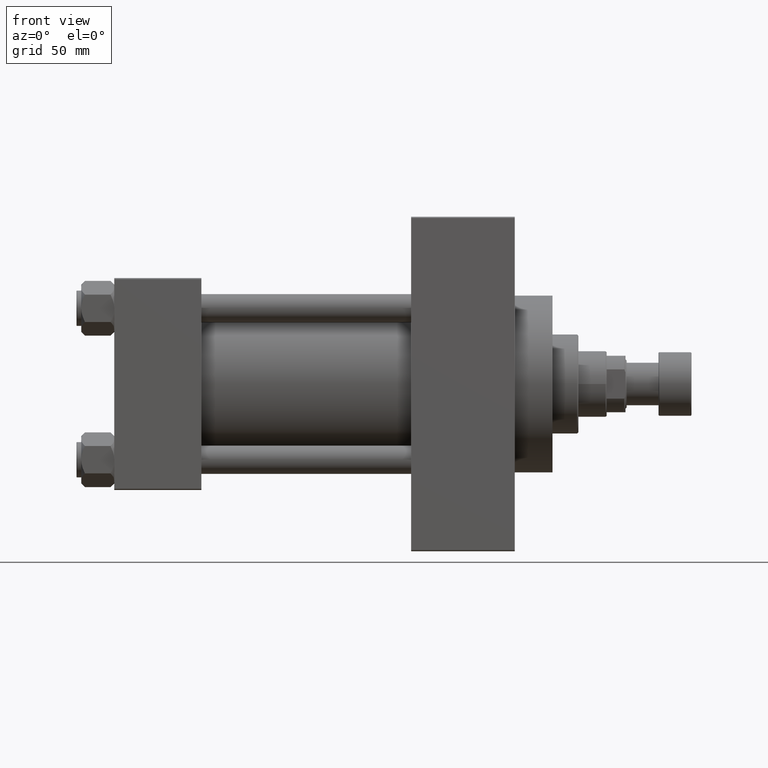
[diagram: clean part render]
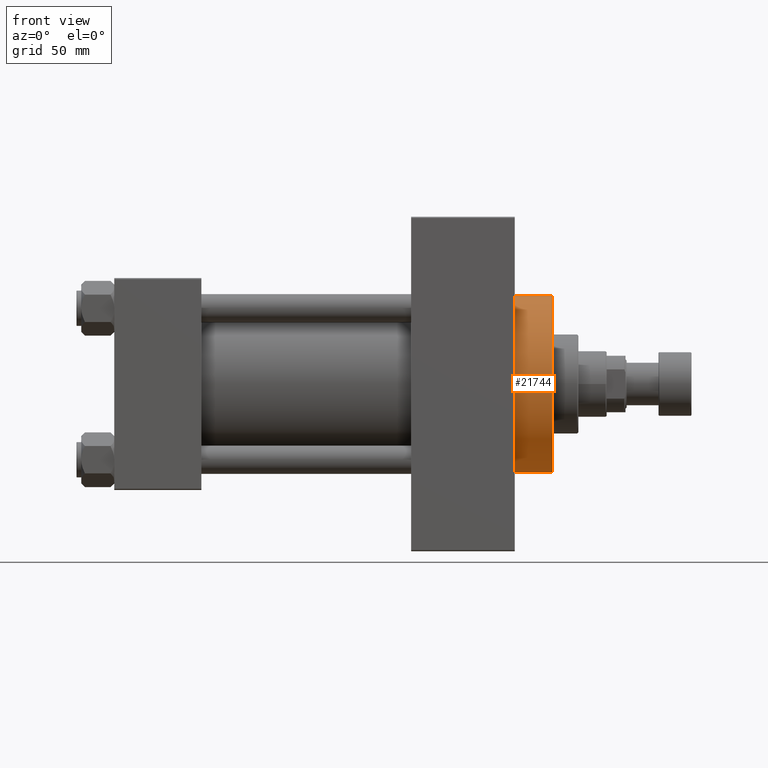
[diagram: same view with one face highlighted and labeled with its STEP entity id]
A machine part, front view. The second image highlights one B-rep face of the part: STEP entity #21744.
In plain terms, the highlighted cylindrical surface (partial cylindrical patch) has radius 37.5 mm, axis along (-1, -0, -0).
Its self-contained STEP definition (entity closure, byte-faithful):
#306 = AXIS2_PLACEMENT_3D ( 'NONE', #27364, #1101, #15824 ) ;
#1101 = DIRECTION ( 'NONE',  ( 1.000000000000000000, 0.000000000000000000, 0.000000000000000000 ) ) ;
#1910 = LINE ( 'NONE', #20934, #5292 ) ;
#2114 = DIRECTION ( 'NONE',  ( 1.000000000000000000, 0.000000000000000000, 0.000000000000000000 ) ) ;
#3151 = LINE ( 'NONE', #28935, #3802 ) ;
#3802 = VECTOR ( 'NONE', #14479, 1000.000000000000000 ) ;
#5122 = CIRCLE ( 'NONE', #32029, 37.50000000000000711 ) ;
#5292 = VECTOR ( 'NONE', #13720, 1000.000000000000000 ) ;
#5736 = DIRECTION ( 'NONE',  ( 0.000000000000000000, 0.000000000000000000, -1.000000000000000000 ) ) ;
#8328 = EDGE_CURVE ( 'NONE', #19765, #23846, #5122, .T. ) ;
#11517 = CYLINDRICAL_SURFACE ( 'NONE', #31041, 37.50000000000000711 ) ;
#11754 = CARTESIAN_POINT ( 'NONE',  ( 186.0000000000000000, 0.000000000000000000, 0.000000000000000000 ) ) ;
#13720 = DIRECTION ( 'NONE',  ( -1.000000000000000000, -0.000000000000000000, -0.000000000000000000 ) ) ;
#14479 = DIRECTION ( 'NONE',  ( -1.000000000000000000, -0.000000000000000000, -0.000000000000000000 ) ) ;
#14933 = CIRCLE ( 'NONE', #306, 37.50000000000000711 ) ;
#15824 = DIRECTION ( 'NONE',  ( 0.000000000000000000, 0.000000000000000000, -1.000000000000000000 ) ) ;
#16356 = ORIENTED_EDGE ( 'NONE', *, *, #41297, .T. ) ;
#16369 = ORIENTED_EDGE ( 'NONE', *, *, #47652, .F. ) ;
#17898 = CARTESIAN_POINT ( 'NONE',  ( 169.9999999999999716, 4.592425496802575156E-15, -37.50000000000000711 ) ) ;
#19765 = VERTEX_POINT ( 'NONE', #25166 ) ;
#20934 = CARTESIAN_POINT ( 'NONE',  ( 186.0000000000000000, 0.000000000000000000, 37.50000000000000711 ) ) ;
#21699 = ORIENTED_EDGE ( 'NONE', *, *, #8328, .T. ) ;
#21744 = ADVANCED_FACE ( 'NONE', ( #26704 ), #11517, .T. ) ;
#22027 = CARTESIAN_POINT ( 'NONE',  ( 186.0000000000000000, 4.592425496802575156E-15, -37.50000000000000711 ) ) ;
#23846 = VERTEX_POINT ( 'NONE', #17898 ) ;
#25166 = CARTESIAN_POINT ( 'NONE',  ( 169.9999999999999716, 0.000000000000000000, 37.50000000000000711 ) ) ;
#26704 = FACE_OUTER_BOUND ( 'NONE', #39260, .T. ) ;
#27164 = DIRECTION ( 'NONE',  ( 0.000000000000000000, 0.000000000000000000, 1.000000000000000000 ) ) ;
#27364 = CARTESIAN_POINT ( 'NONE',  ( 186.0000000000000000, 0.000000000000000000, 0.000000000000000000 ) ) ;
#28935 = CARTESIAN_POINT ( 'NONE',  ( 186.0000000000000000, 4.592425496802575156E-15, -37.50000000000000711 ) ) ;
#28945 = VERTEX_POINT ( 'NONE', #22027 ) ;
#31041 = AXIS2_PLACEMENT_3D ( 'NONE', #11754, #33940, #27164 ) ;
#31274 = ORIENTED_EDGE ( 'NONE', *, *, #40136, .F. ) ;
#32029 = AXIS2_PLACEMENT_3D ( 'NONE', #46932, #2114, #5736 ) ;
#33940 = DIRECTION ( 'NONE',  ( -1.000000000000000000, -0.000000000000000000, -0.000000000000000000 ) ) ;
#39260 = EDGE_LOOP ( 'NONE', ( #31274, #16369, #16356, #21699 ) ) ;
#40136 = EDGE_CURVE ( 'NONE', #28945, #23846, #3151, .T. ) ;
#41297 = EDGE_CURVE ( 'NONE', #42974, #19765, #1910, .T. ) ;
#42974 = VERTEX_POINT ( 'NONE', #45293 ) ;
#45293 = CARTESIAN_POINT ( 'NONE',  ( 186.0000000000000000, 0.000000000000000000, 37.50000000000000711 ) ) ;
#46932 = CARTESIAN_POINT ( 'NONE',  ( 169.9999999999999716, 0.000000000000000000, 0.000000000000000000 ) ) ;
#47652 = EDGE_CURVE ( 'NONE', #42974, #28945, #14933, .T. ) ;